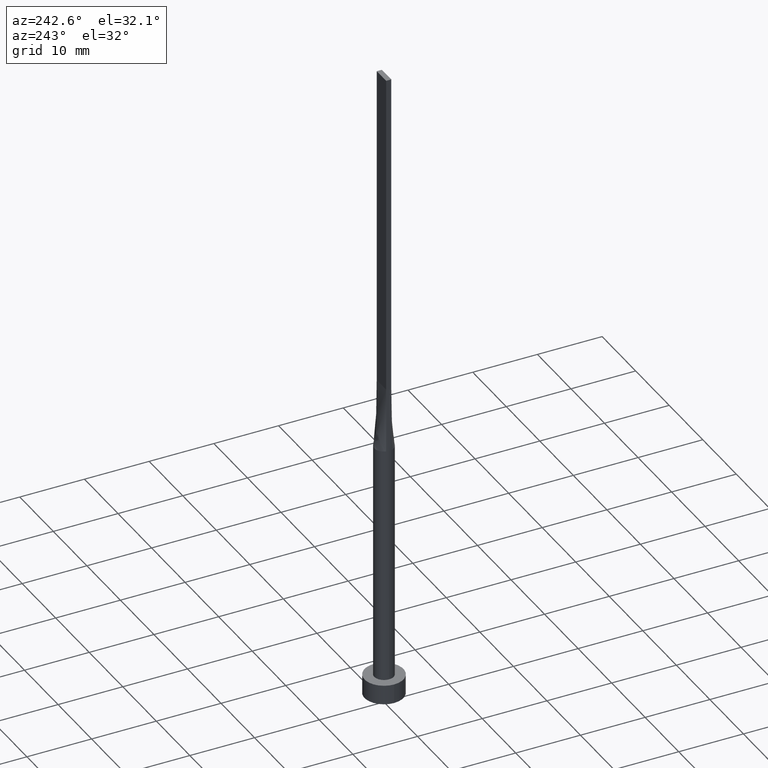
[diagram: clean part render]
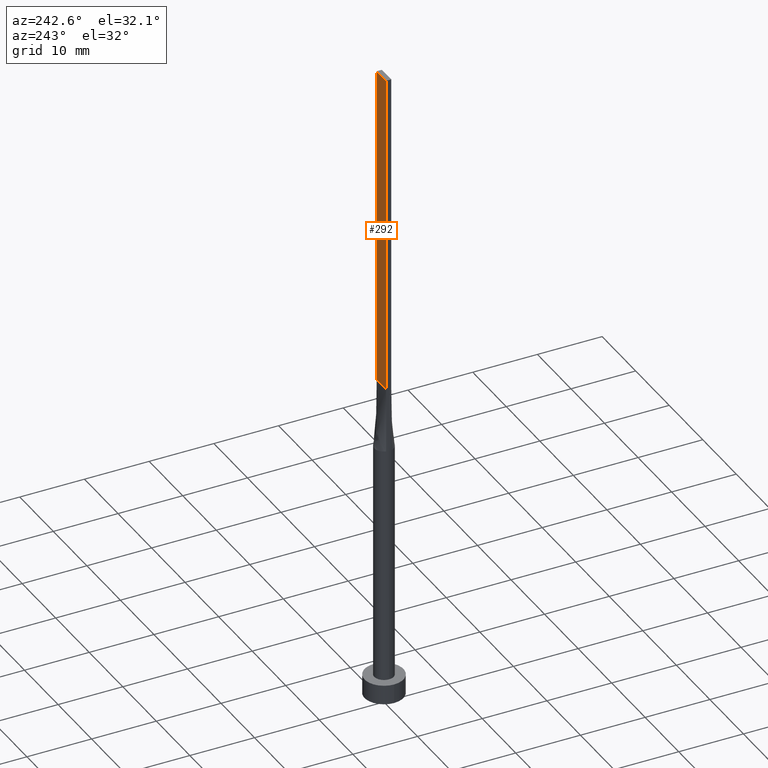
[diagram: same view with one face highlighted and labeled with its STEP entity id]
A machine part, auxiliary view. The second image highlights one B-rep face of the part: STEP entity #292.
In plain terms, the highlighted planar face has unit normal (0, -1, 0).
Its self-contained STEP definition (entity closure, byte-faithful):
#4 = LINE ( 'NONE', #138, #515 ) ;
#11 = AXIS2_PLACEMENT_3D ( 'NONE', #95, #57, #18 ) ;
#18 = DIRECTION ( 'NONE',  ( 0.000000000000000000, -0.000000000000000000, -1.000000000000000000 ) ) ;
#22 = DIRECTION ( 'NONE',  ( -0.000000000000000000, -0.000000000000000000, -1.000000000000000000 ) ) ;
#29 = VERTEX_POINT ( 'NONE', #167 ) ;
#57 = DIRECTION ( 'NONE',  ( 0.000000000000000000, -1.000000000000000000, 0.000000000000000000 ) ) ;
#74 = VECTOR ( 'NONE', #22, 1000.000000000000000 ) ;
#79 = VERTEX_POINT ( 'NONE', #236 ) ;
#92 = CARTESIAN_POINT ( 'NONE',  ( -1.399999999999999689, 0.4000000000000002442, 50.00000000000000000 ) ) ;
#95 = CARTESIAN_POINT ( 'NONE',  ( 1.399999999999999689, 0.4000000000000002442, 100.0000000000000000 ) ) ;
#108 = CARTESIAN_POINT ( 'NONE',  ( 1.399999999999999689, 0.4000000000000002442, 100.0000000000000000 ) ) ;
#123 = CARTESIAN_POINT ( 'NONE',  ( -1.399999999999999689, 0.4000000000000002442, 50.00000000000000000 ) ) ;
#125 = ORIENTED_EDGE ( 'NONE', *, *, #504, .T. ) ;
#134 = CARTESIAN_POINT ( 'NONE',  ( -1.399999999999999689, 0.4000000000000002442, 100.0000000000000000 ) ) ;
#136 = LINE ( 'NONE', #92, #521 ) ;
#138 = CARTESIAN_POINT ( 'NONE',  ( 1.399999999999999689, 0.4000000000000002442, 100.0000000000000000 ) ) ;
#154 = EDGE_CURVE ( 'NONE', #482, #79, #328, .T. ) ;
#167 = CARTESIAN_POINT ( 'NONE',  ( -1.399999999999999689, 0.4000000000000002442, 100.0000000000000000 ) ) ;
#191 = EDGE_CURVE ( 'NONE', #482, #29, #4, .T. ) ;
#196 = CARTESIAN_POINT ( 'NONE',  ( 1.399999999999999689, 0.4000000000000002442, 100.0000000000000000 ) ) ;
#236 = CARTESIAN_POINT ( 'NONE',  ( 1.399999999999999689, 0.4000000000000002442, 50.00000000000000000 ) ) ;
#262 = EDGE_LOOP ( 'NONE', ( #125, #525, #263, #355 ) ) ;
#263 = ORIENTED_EDGE ( 'NONE', *, *, #191, .F. ) ;
#277 = VECTOR ( 'NONE', #278, 1000.000000000000000 ) ;
#278 = DIRECTION ( 'NONE',  ( -0.000000000000000000, -0.000000000000000000, -1.000000000000000000 ) ) ;
#282 = FACE_OUTER_BOUND ( 'NONE', #262, .T. ) ;
#292 = ADVANCED_FACE ( 'NONE', ( #282 ), #327, .F. ) ;
#321 = DIRECTION ( 'NONE',  ( -1.000000000000000000, 0.000000000000000000, 0.000000000000000000 ) ) ;
#327 = PLANE ( 'NONE',  #11 ) ;
#328 = LINE ( 'NONE', #108, #74 ) ;
#355 = ORIENTED_EDGE ( 'NONE', *, *, #154, .T. ) ;
#443 = VERTEX_POINT ( 'NONE', #123 ) ;
#482 = VERTEX_POINT ( 'NONE', #196 ) ;
#497 = DIRECTION ( 'NONE',  ( -1.000000000000000000, -0.000000000000000000, -0.000000000000000000 ) ) ;
#504 = EDGE_CURVE ( 'NONE', #79, #443, #136, .T. ) ;
#515 = VECTOR ( 'NONE', #321, 1000.000000000000000 ) ;
#521 = VECTOR ( 'NONE', #497, 1000.000000000000000 ) ;
#523 = EDGE_CURVE ( 'NONE', #29, #443, #534, .T. ) ;
#525 = ORIENTED_EDGE ( 'NONE', *, *, #523, .F. ) ;
#534 = LINE ( 'NONE', #134, #277 ) ;